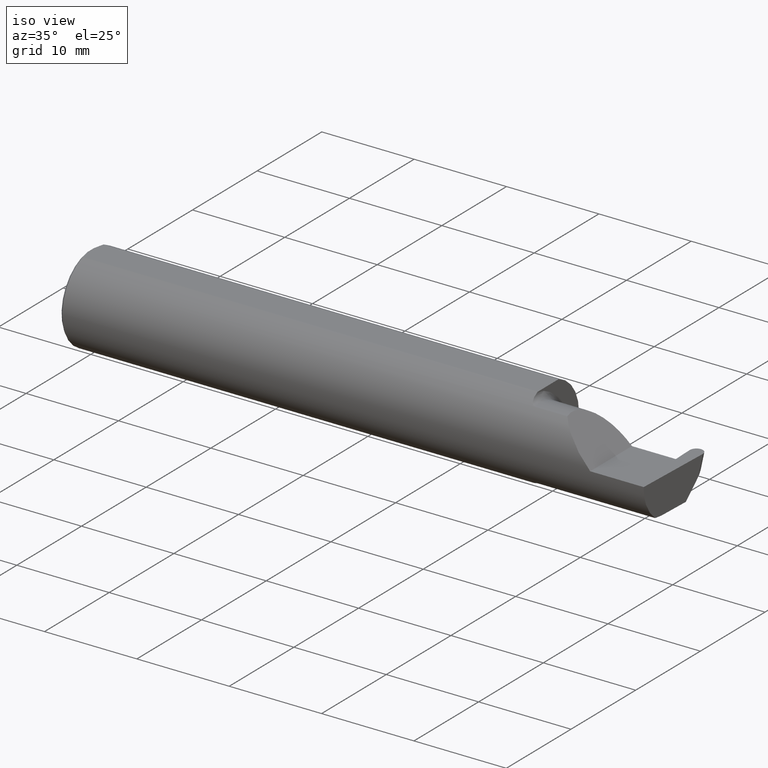
[diagram: clean part render]
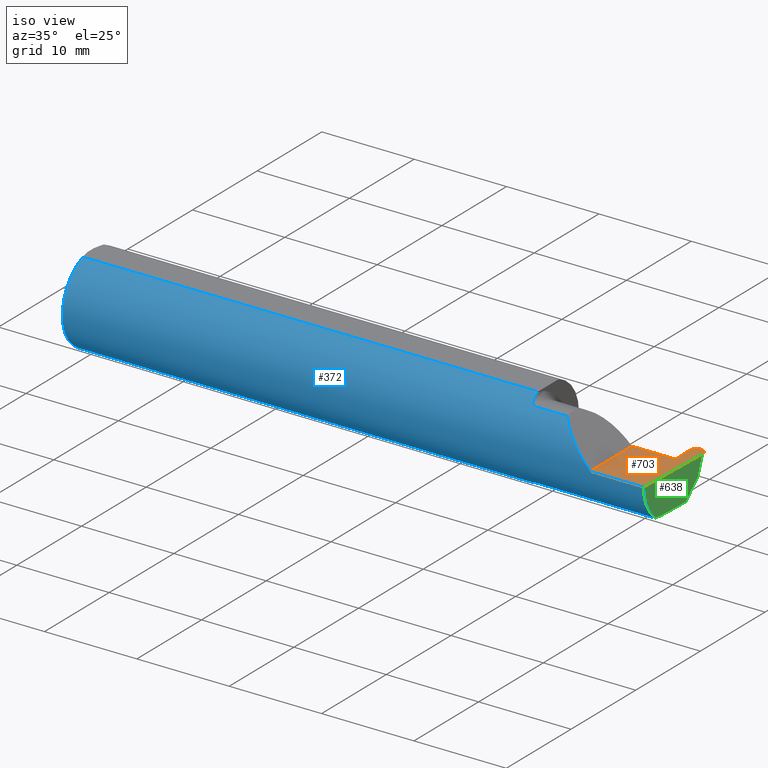
[diagram: same view with three faces highlighted in distinct colors, each labeled with its STEP entity id]
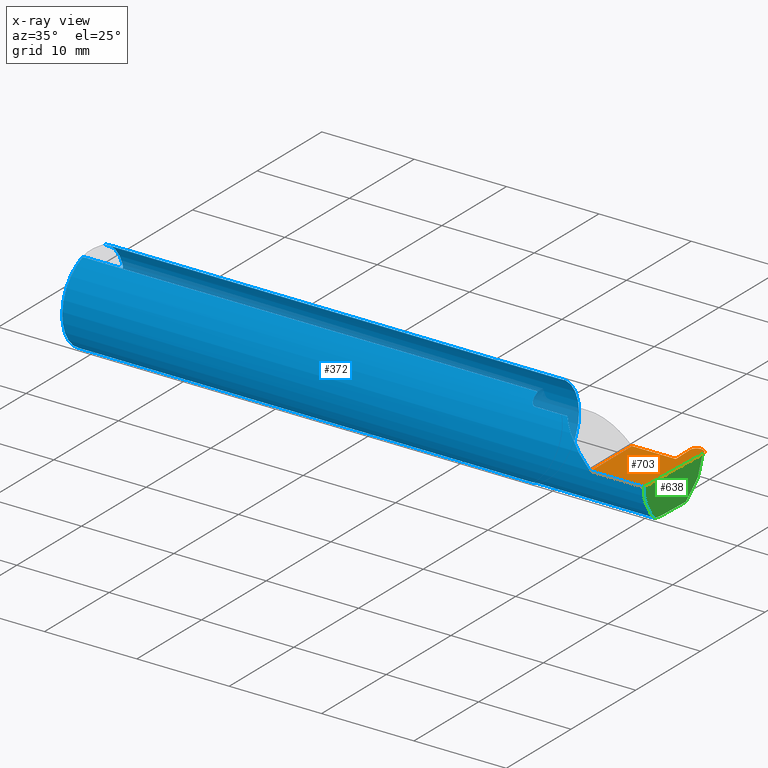
[diagram: x-ray of the same camera — body ghosted, the three highlighted faces saturated]
A machine part, iso view with three faces highlighted in distinct colors.
The next image is the same camera in x-ray (body ghosted, the three faces saturated) — at least one of them is partly hidden behind the body in this view.
Their STEP definitions:

[orange] entity #703 — the highlighted planar face has unit normal (-0, 0, -1).
#12 = CARTESIAN_POINT ( 'NONE',  ( 2.472196486352602030, 0.1846500000000000363, 0.000000000000000000 ) ) ;
#17 = ORIENTED_EDGE ( 'NONE', *, *, #543, .F. ) ;
#18 = EDGE_CURVE ( 'NONE', #534, #537, #34, .T. ) ;
#34 =( BOUNDED_CURVE ( )  B_SPLINE_CURVE ( 3, ( #498, #235, #672, #445 ),
 .UNSPECIFIED., .F., .T. ) 
 B_SPLINE_CURVE_WITH_KNOTS ( ( 4, 4 ),
 ( 6.199081184676152212, 7.797674339294876411 ),
 .UNSPECIFIED. ) 
 CURVE ( )  GEOMETRIC_REPRESENTATION_ITEM ( )  RATIONAL_B_SPLINE_CURVE ( ( 1.000000000000000000, 0.7981407609938082626, 0.7981407609938082626, 1.000000000000000000 ) ) 
 REPRESENTATION_ITEM ( '' )  );
#49 = DIRECTION ( 'NONE',  ( -0.000000000000000000, 1.000000000000000000, -0.000000000000000000 ) ) ;
#65 = CARTESIAN_POINT ( 'NONE',  ( 2.447024025498200750, 0.06664999999999991764, 0.000000000000000000 ) ) ;
#102 = ORIENTED_EDGE ( 'NONE', *, *, #236, .F. ) ;
#108 = DIRECTION ( 'NONE',  ( -1.000000000000000000, 0.000000000000000000, 1.224646799147353947E-16 ) ) ;
#117 = DIRECTION ( 'NONE',  ( -1.000000000000000000, -0.000000000000000000, -0.000000000000000000 ) ) ;
#119 = EDGE_CURVE ( 'NONE', #208, #598, #631, .T. ) ;
#123 = ORIENTED_EDGE ( 'NONE', *, *, #18, .T. ) ;
#125 = EDGE_CURVE ( 'NONE', #625, #201, #190, .T. ) ;
#144 = CARTESIAN_POINT ( 'NONE',  ( 2.499982912697886750, 0.1556210691174950700, 0.000000000000000000 ) ) ;
#153 = EDGE_LOOP ( 'NONE', ( #518, #123, #320, #370, #437, #102, #17, #666, #489 ) ) ;
#163 = CARTESIAN_POINT ( 'NONE',  ( 2.443960049305725857, 0.1543907983005533280, 0.000000000000000000 ) ) ;
#169 = CARTESIAN_POINT ( 'NONE',  ( 2.472196486352602030, 0.1846500000000000363, 0.000000000000000000 ) ) ;
#176 = DIRECTION ( 'NONE',  ( 1.000000000000000000, -0.000000000000000000, -0.000000000000000000 ) ) ;
#184 = CARTESIAN_POINT ( 'NONE',  ( 2.437903374698175529, 0.06664999999999991764, 0.000000000000000000 ) ) ;
#190 = LINE ( 'NONE', #144, #574 ) ;
#201 = VERTEX_POINT ( 'NONE', #585 ) ;
#207 = CARTESIAN_POINT ( 'NONE',  ( 2.443917087302114766, 0.1556210691174950977, 0.000000000000000000 ) ) ;
#208 = VERTEX_POINT ( 'NONE', #624 ) ;
#213 = DIRECTION ( 'NONE',  ( -1.224646799147353947E-16, 0.000000000000000000, -1.000000000000000000 ) ) ;
#221 = CARTESIAN_POINT ( 'NONE',  ( 2.499939950694276103, 0.1543907983005533280, 0.000000000000000000 ) ) ;
#224 = LINE ( 'NONE', #504, #659 ) ;
#231 = CARTESIAN_POINT ( 'NONE',  ( 2.447024025498200750, 0.06664999999999991764, 0.000000000000000000 ) ) ;
#235 = CARTESIAN_POINT ( 'NONE',  ( 2.454931386279057826, 0.1846500000000000918, 2.084523217784548210E-18 ) ) ;
#236 = EDGE_CURVE ( 'NONE', #529, #208, #459, .T. ) ;
#248 = CARTESIAN_POINT ( 'NONE',  ( 1.949999999999999956, 0.06665000000000001479, 6.735557395310446214E-17 ) ) ;
#286 = LINE ( 'NONE', #231, #695 ) ;
#312 = EDGE_CURVE ( 'NONE', #422, #537, #706, .T. ) ;
#320 = ORIENTED_EDGE ( 'NONE', *, *, #312, .F. ) ;
#328 = VECTOR ( 'NONE', #432, 39.37007874015748854 ) ;
#329 = CARTESIAN_POINT ( 'NONE',  ( 2.500000000000000000, -0.2500000000000000555, 0.000000000000000000 ) ) ;
#336 = CARTESIAN_POINT ( 'NONE',  ( 2.488968613720943246, 0.1846500000000000641, -2.084523217784549751E-18 ) ) ;
#344 = CARTESIAN_POINT ( 'NONE',  ( 2.471703513647399486, 0.1846500000000000363, 0.000000000000000000 ) ) ;
#364 = CARTESIAN_POINT ( 'NONE',  ( 2.499939950694276103, 0.1543907983005533280, 0.000000000000000000 ) ) ;
#370 = ORIENTED_EDGE ( 'NONE', *, *, #486, .F. ) ;
#390 = LINE ( 'NONE', #607, #482 ) ;
#413 = EDGE_CURVE ( 'NONE', #625, #506, #539, .T. ) ;
#422 = VERTEX_POINT ( 'NONE', #65 ) ;
#423 = EDGE_CURVE ( 'NONE', #534, #506, #224, .T. ) ;
#432 = DIRECTION ( 'NONE',  ( -0.03489949670249503644, 0.9993908270190959842, -0.000000000000000000 ) ) ;
#437 = ORIENTED_EDGE ( 'NONE', *, *, #119, .F. ) ;
#445 = CARTESIAN_POINT ( 'NONE',  ( 2.443960049305725857, 0.1543907983005533280, 0.000000000000000000 ) ) ;
#459 = LINE ( 'NONE', #686, #503 ) ;
#473 = PLANE ( 'NONE',  #555 ) ;
#482 = VECTOR ( 'NONE', #117, 39.37007874015748143 ) ;
#486 = EDGE_CURVE ( 'NONE', #598, #422, #286, .T. ) ;
#489 = ORIENTED_EDGE ( 'NONE', *, *, #413, .T. ) ;
#498 = CARTESIAN_POINT ( 'NONE',  ( 2.471703513647399486, 0.1846500000000000363, 0.000000000000000000 ) ) ;
#503 = VECTOR ( 'NONE', #49, 39.37007874015748143 ) ;
#504 = CARTESIAN_POINT ( 'NONE',  ( -0.001039370078740541395, 0.1846500000000000363, 0.000000000000000000 ) ) ;
#506 = VERTEX_POINT ( 'NONE', #12 ) ;
#518 = ORIENTED_EDGE ( 'NONE', *, *, #423, .F. ) ;
#529 = VERTEX_POINT ( 'NONE', #661 ) ;
#534 = VERTEX_POINT ( 'NONE', #344 ) ;
#537 = VERTEX_POINT ( 'NONE', #163 ) ;
#539 =( BOUNDED_CURVE ( )  B_SPLINE_CURVE ( 3, ( #221, #561, #336, #169 ),
 .UNSPECIFIED., .F., .T. ) 
 B_SPLINE_CURVE_WITH_KNOTS ( ( 4, 4 ),
 ( 1.627103621474501827, 3.225696776093226248 ),
 .UNSPECIFIED. ) 
 CURVE ( )  GEOMETRIC_REPRESENTATION_ITEM ( )  RATIONAL_B_SPLINE_CURVE ( ( 1.000000000000000000, 0.7981407609938081515, 0.7981407609938081515, 1.000000000000000000 ) ) 
 REPRESENTATION_ITEM ( '' )  );
#543 = EDGE_CURVE ( 'NONE', #201, #529, #390, .T. ) ;
#555 = AXIS2_PLACEMENT_3D ( 'NONE', #329, #213, #108 ) ;
#561 = CARTESIAN_POINT ( 'NONE',  ( 2.500555318597047716, 0.1720126294265148514, -3.503485321703165850E-18 ) ) ;
#572 = DIRECTION ( 'NONE',  ( -0.03489949670249509889, -0.9993908270190959842, 0.000000000000000000 ) ) ;
#574 = VECTOR ( 'NONE', #572, 39.37007874015748854 ) ;
#585 = CARTESIAN_POINT ( 'NONE',  ( 2.488006099050898090, -0.1873499999999999888, 0.000000000000000000 ) ) ;
#590 = VECTOR ( 'NONE', #636, 39.37007874015748143 ) ;
#598 = VERTEX_POINT ( 'NONE', #184 ) ;
#607 = CARTESIAN_POINT ( 'NONE',  ( 3.749399456654646757E-32, -0.1873499999999999610, 3.061616997868383634E-16 ) ) ;
#624 = CARTESIAN_POINT ( 'NONE',  ( 2.260000000000000231, 0.06665000000000001479, 6.735557395310446214E-17 ) ) ;
#625 = VERTEX_POINT ( 'NONE', #364 ) ;
#631 = LINE ( 'NONE', #248, #590 ) ;
#636 = DIRECTION ( 'NONE',  ( 1.000000000000000000, 3.456985211662611914E-17, 0.000000000000000000 ) ) ;
#654 = FACE_OUTER_BOUND ( 'NONE', #153, .T. ) ;
#659 = VECTOR ( 'NONE', #674, 39.37007874015748143 ) ;
#661 = CARTESIAN_POINT ( 'NONE',  ( 2.260000000000000231, -0.1873499999999999888, 2.939152317953647352E-17 ) ) ;
#666 = ORIENTED_EDGE ( 'NONE', *, *, #125, .F. ) ;
#672 = CARTESIAN_POINT ( 'NONE',  ( 2.443344681402952911, 0.1720126294265148792, 3.503485321703165080E-18 ) ) ;
#674 = DIRECTION ( 'NONE',  ( 1.000000000000000000, -0.000000000000000000, -0.000000000000000000 ) ) ;
#686 = CARTESIAN_POINT ( 'NONE',  ( 2.260000000000000231, -0.2500000000000000555, 2.939152317953647352E-17 ) ) ;
#695 = VECTOR ( 'NONE', #176, 39.37007874015748143 ) ;
#703 = ADVANCED_FACE ( 'NONE', ( #654 ), #473, .F. ) ;
#706 = LINE ( 'NONE', #207, #328 ) ;

[blue] entity #372 — the highlighted cylindrical surface (partial cylindrical patch) has radius 4.7587 mm, axis along (-1, -0, -0).
#4 = CARTESIAN_POINT ( 'NONE',  ( 0.009999999999999346217, 0.000000000000000000, -0.1873499999999999888 ) ) ;
#5 = CARTESIAN_POINT ( 'NONE',  ( 0.000000000000000000, 0.000000000000000000, 0.000000000000000000 ) ) ;
#27 = CARTESIAN_POINT ( 'NONE',  ( 1.949999999999999956, -0.06851976604679065053, -0.1743704796142198643 ) ) ;
#30 = CARTESIAN_POINT ( 'NONE',  ( 1.951829077486400221, -0.08839624499054647699, 0.1652742498708037466 ) ) ;
#31 = CARTESIAN_POINT ( 'NONE',  ( 2.202189699843948301, -0.1873500000000000443, 0.05781030015605120170 ) ) ;
#35 = CARTESIAN_POINT ( 'NONE',  ( 1.965004157323697598, -0.1137044537483316436, 0.1489098419202428414 ) ) ;
#38 = DIRECTION ( 'NONE',  ( 1.000000000000000000, 3.456985211662611914E-17, 0.000000000000000000 ) ) ;
#39 = CARTESIAN_POINT ( 'NONE',  ( 2.113883229301068312, -0.1172600179964003175, 0.1461167706989304760 ) ) ;
#44 = ORIENTED_EDGE ( 'NONE', *, *, #583, .F. ) ;
#51 = DIRECTION ( 'NONE',  ( 0.000000000000000000, 0.000000000000000000, -1.000000000000000000 ) ) ;
#52 = LINE ( 'NONE', #478, #658 ) ;
#59 = CARTESIAN_POINT ( 'NONE',  ( 1.974999999999999867, -0.1172600179964006784, 0.1461167706989303650 ) ) ;
#69 = ORIENTED_EDGE ( 'NONE', *, *, #342, .F. ) ;
#70 = EDGE_CURVE ( 'NONE', #476, #110, #95, .T. ) ;
#72 = ORIENTED_EDGE ( 'NONE', *, *, #694, .T. ) ;
#81 = CARTESIAN_POINT ( 'NONE',  ( 1.972161949849307927, -0.1172600179964061184, 0.1461167706989260073 ) ) ;
#85 = VECTOR ( 'NONE', #417, 39.37007874015748143 ) ;
#90 = CARTESIAN_POINT ( 'NONE',  ( 2.486959146249366537, -0.1623470442677541203, -0.1099340280425339100 ) ) ;
#95 = CIRCLE ( 'NONE', #182, 0.1873499999999999888 ) ;
#100 = EDGE_LOOP ( 'NONE', ( #69, #637, #186, #212, #272, #44, #629, #582, #72, #378, #411, #191, #586 ) ) ;
#104 = DIRECTION ( 'NONE',  ( 1.000000000000000000, 0.000000000000000000, 0.000000000000000000 ) ) ;
#110 = VERTEX_POINT ( 'NONE', #395 ) ;
#116 = EDGE_CURVE ( 'NONE', #529, #164, #634, .T. ) ;
#117 = DIRECTION ( 'NONE',  ( -1.000000000000000000, -0.000000000000000000, -0.000000000000000000 ) ) ;
#134 = CARTESIAN_POINT ( 'NONE',  ( 1.950358271039143165, -0.07873626113568077400, -0.1700887912276895508 ) ) ;
#143 = CARTESIAN_POINT ( 'NONE',  ( 1.956304331342286762, -0.1022198306720689676, -0.1570962426853819427 ) ) ;
#150 = CARTESIAN_POINT ( 'NONE',  ( 0.009999999999999346217, 0.000000000000000000, 0.000000000000000000 ) ) ;
#151 = AXIS2_PLACEMENT_3D ( 'NONE', #379, #599, #588 ) ;
#154 = DIRECTION ( 'NONE',  ( -1.000000000000000000, -0.000000000000000000, -0.000000000000000000 ) ) ;
#164 = VERTEX_POINT ( 'NONE', #696 ) ;
#165 = EDGE_CURVE ( 'NONE', #430, #457, #352, .T. ) ;
#182 = AXIS2_PLACEMENT_3D ( 'NONE', #668, #563, #290 ) ;
#186 = ORIENTED_EDGE ( 'NONE', *, *, #543, .T. ) ;
#191 = ORIENTED_EDGE ( 'NONE', *, *, #568, .F. ) ;
#192 = CARTESIAN_POINT ( 'NONE',  ( 1.956287624083520305, -0.1021858045380145824, 0.1571187174372875861 ) ) ;
#195 = LINE ( 'NONE', #408, #439 ) ;
#201 = VERTEX_POINT ( 'NONE', #585 ) ;
#205 = VERTEX_POINT ( 'NONE', #528 ) ;
#212 = ORIENTED_EDGE ( 'NONE', *, *, #116, .T. ) ;
#237 = CARTESIAN_POINT ( 'NONE',  ( 1.958475602106621860, -0.1064978748893406074, 0.1542035505680383611 ) ) ;
#242 = AXIS2_PLACEMENT_3D ( 'NONE', #627, #38, #298 ) ;
#247 = CARTESIAN_POINT ( 'NONE',  ( 1.949999999999999956, -0.06851976604679065053, 0.1743704796142198643 ) ) ;
#249 = VERTEX_POINT ( 'NONE', #377 ) ;
#250 = CARTESIAN_POINT ( 'NONE',  ( 1.950353553376444671, -0.07868116735658675642, 0.1701139256562800295 ) ) ;
#272 = ORIENTED_EDGE ( 'NONE', *, *, #594, .F. ) ;
#288 = EDGE_CURVE ( 'NONE', #205, #476, #52, .T. ) ;
#290 = DIRECTION ( 'NONE',  ( 0.000000000000000000, 1.000000000000000000, 0.000000000000000000 ) ) ;
#298 = DIRECTION ( 'NONE',  ( 0.000000000000000000, 1.000000000000000000, 0.000000000000000000 ) ) ;
#302 = CARTESIAN_POINT ( 'NONE',  ( 1.974999999999999867, -0.1172600179964006784, 0.1461167706989303650 ) ) ;
#306 = CARTESIAN_POINT ( 'NONE',  ( 0.000000000000000000, 0.06325108694718235836, 0.1763499999999999235 ) ) ;
#309 = CARTESIAN_POINT ( 'NONE',  ( 2.486996401427643555, -0.1873500000000000443, -0.05781030015605125721 ) ) ;
#324 = CARTESIAN_POINT ( 'NONE',  ( 1.949999999999999956, -0.06851976604679065053, -0.1743704796142198643 ) ) ;
#342 = EDGE_CURVE ( 'NONE', #346, #249, #533, .T. ) ;
#345 = AXIS2_PLACEMENT_3D ( 'NONE', #5, #154, #373 ) ;
#346 = VERTEX_POINT ( 'NONE', #435 ) ;
#351 = CARTESIAN_POINT ( 'NONE',  ( 1.969511795768554396, -0.1163687266324233555, -0.1468371510166789906 ) ) ;
#352 = LINE ( 'NONE', #306, #85 ) ;
#353 = VERTEX_POINT ( 'NONE', #59 ) ;
#372 = ADVANCED_FACE ( 'NONE', ( #549 ), #487, .T. ) ;
#373 = DIRECTION ( 'NONE',  ( 0.000000000000000000, 0.000000000000000000, 1.000000000000000000 ) ) ;
#377 = CARTESIAN_POINT ( 'NONE',  ( 1.974999999999999867, -0.1172600179964005396, -0.1461167706989303927 ) ) ;
#378 = ORIENTED_EDGE ( 'NONE', *, *, #642, .T. ) ;
#379 = CARTESIAN_POINT ( 'NONE',  ( 0.009999999999999346217, 0.000000000000000000, 0.000000000000000000 ) ) ;
#390 = LINE ( 'NONE', #607, #482 ) ;
#394 = CARTESIAN_POINT ( 'NONE',  ( 1.949999999999999956, 0.06325108694718235836, 0.1763499999999999235 ) ) ;
#395 = CARTESIAN_POINT ( 'NONE',  ( 1.949999999999999956, -0.06851976604679065053, 0.1743704796142198643 ) ) ;
#404 = CARTESIAN_POINT ( 'NONE',  ( 1.974999999999999867, -0.1172600179964005396, -0.1461167706989303927 ) ) ;
#407 = B_SPLINE_CURVE_WITH_KNOTS ( 'NONE', 3,
 ( #404, #523, #351, #466, #416, #635, #143, #623, #584, #134, #508, #27 ),
 .UNSPECIFIED., .F., .F.,
 ( 4, 2, 2, 2, 2, 4 ),
 ( 1.967976973726874814E-07, 0.0002120314145722347263, 0.0004238660314470967276, 0.0008475352651968083703, 0.001271204498946519905, 0.001694873732696231547 ),
 .UNSPECIFIED. ) ;
#408 = CARTESIAN_POINT ( 'NONE',  ( 2.209449999999999914, -0.1172600179964006090, 0.1461167706989303927 ) ) ;
#411 = ORIENTED_EDGE ( 'NONE', *, *, #165, .F. ) ;
#412 = DIRECTION ( 'NONE',  ( 1.000000000000000000, 3.456985211662611914E-17, 0.000000000000000000 ) ) ;
#414 = VECTOR ( 'NONE', #652, 39.37007874015748143 ) ;
#416 = CARTESIAN_POINT ( 'NONE',  ( 1.963203859946833330, -0.1120371980050637317, -0.1501764597936559864 ) ) ;
#417 = DIRECTION ( 'NONE',  ( -1.000000000000000000, -0.000000000000000000, -0.000000000000000000 ) ) ;
#430 = VERTEX_POINT ( 'NONE', #394 ) ;
#435 = CARTESIAN_POINT ( 'NONE',  ( 2.487901662807321390, -0.1172600179964006090, -0.1461167706989303927 ) ) ;
#439 = VECTOR ( 'NONE', #412, 39.37007874015748143 ) ;
#453 = CARTESIAN_POINT ( 'NONE',  ( 2.488006099050898090, -0.1873499999999999888, 0.000000000000000000 ) ) ;
#457 = VERTEX_POINT ( 'NONE', #564 ) ;
#458 = CARTESIAN_POINT ( 'NONE',  ( 1.952945243422982591, -0.09312071749437422774, 0.1626553472577906834 ) ) ;
#463 = CARTESIAN_POINT ( 'NONE',  ( 1.949999999999999956, -0.07367581953296703512, 0.1723443821957854338 ) ) ;
#464 = CARTESIAN_POINT ( 'NONE',  ( 2.150065971957464850, -0.1623470442677540371, 0.1099340280425340488 ) ) ;
#466 = CARTESIAN_POINT ( 'NONE',  ( 1.965028532764137914, -0.1137241120808234196, -0.1488947809299404346 ) ) ;
#476 = VERTEX_POINT ( 'NONE', #667 ) ;
#478 = CARTESIAN_POINT ( 'NONE',  ( 0.000000000000000000, -0.06325108694718235836, 0.1763499999999999235 ) ) ;
#482 = VECTOR ( 'NONE', #117, 39.37007874015748143 ) ;
#487 = CYLINDRICAL_SURFACE ( 'NONE', #345, 0.1873499999999999888 ) ;
#494 = AXIS2_PLACEMENT_3D ( 'NONE', #150, #104, #51 ) ;
#508 = CARTESIAN_POINT ( 'NONE',  ( 1.949999999999999067, -0.07368234487347190276, -0.1723418180300748115 ) ) ;
#511 = CARTESIAN_POINT ( 'NONE',  ( 1.963163223656403389, -0.1119926267047277602, 0.1502091925606062750 ) ) ;
#523 = CARTESIAN_POINT ( 'NONE',  ( 1.972174967710398796, -0.1172600179964006228, -0.1461167706989304205 ) ) ;
#528 = CARTESIAN_POINT ( 'NONE',  ( 0.009999999999999346217, -0.06325108694718235836, 0.1763499999999999235 ) ) ;
#529 = VERTEX_POINT ( 'NONE', #661 ) ;
#533 = LINE ( 'NONE', #545, #414 ) ;
#540 = DIRECTION ( 'NONE',  ( 1.000000000000000000, 0.000000000000000000, 0.000000000000000000 ) ) ;
#543 = EDGE_CURVE ( 'NONE', #201, #529, #390, .T. ) ;
#545 = CARTESIAN_POINT ( 'NONE',  ( 2.209449999999999914, -0.1172600179964006090, -0.1461167706989303927 ) ) ;
#549 = FACE_OUTER_BOUND ( 'NONE', #100, .T. ) ;
#563 = DIRECTION ( 'NONE',  ( 1.000000000000000000, 3.456985211662611914E-17, 0.000000000000000000 ) ) ;
#564 = CARTESIAN_POINT ( 'NONE',  ( 0.009999999999999346217, 0.06325108694718235836, 0.1763499999999999235 ) ) ;
#568 = EDGE_CURVE ( 'NONE', #645, #430, #646, .T. ) ;
#580 = CARTESIAN_POINT ( 'NONE',  ( 2.487901662807321390, -0.1172600179964006090, -0.1461167706989303927 ) ) ;
#582 = ORIENTED_EDGE ( 'NONE', *, *, #288, .F. ) ;
#583 = EDGE_CURVE ( 'NONE', #110, #353, #602, .T. ) ;
#584 = CARTESIAN_POINT ( 'NONE',  ( 1.951843912362378308, -0.08846956905169088559, -0.1652353808078972919 ) ) ;
#585 = CARTESIAN_POINT ( 'NONE',  ( 2.488006099050898090, -0.1873499999999999888, 0.000000000000000000 ) ) ;
#586 = ORIENTED_EDGE ( 'NONE', *, *, #632, .F. ) ;
#588 = DIRECTION ( 'NONE',  ( 0.000000000000000000, 0.000000000000000000, -1.000000000000000000 ) ) ;
#594 = EDGE_CURVE ( 'NONE', #353, #164, #195, .T. ) ;
#599 = DIRECTION ( 'NONE',  ( 1.000000000000000000, 0.000000000000000000, 0.000000000000000000 ) ) ;
#602 = B_SPLINE_CURVE_WITH_KNOTS ( 'NONE', 3,
 ( #247, #463, #250, #30, #458, #192, #237, #511, #35, #685, #81, #302 ),
 .UNSPECIFIED., .F., .F.,
 ( 4, 2, 2, 2, 2, 4 ),
 ( 4.423516731080767705E-05, 0.0004615475116586702166, 0.0008788598560065327562, 0.001296172200354395350, 0.001504828372528326267, 0.001713484544702257402 ),
 .UNSPECIFIED. ) ;
#607 = CARTESIAN_POINT ( 'NONE',  ( 3.749399456654646757E-32, -0.1873499999999999610, 3.061616997868383634E-16 ) ) ;
#622 = EDGE_CURVE ( 'NONE', #346, #201, #626, .T. ) ;
#623 = CARTESIAN_POINT ( 'NONE',  ( 1.952960551809340917, -0.09317341542745738447, -0.1626248379125197208 ) ) ;
#626 =( BOUNDED_CURVE ( )  B_SPLINE_CURVE ( 3, ( #580, #90, #309, #453 ),
 .UNSPECIFIED., .F., .F. ) 
 B_SPLINE_CURVE_WITH_KNOTS ( ( 4, 4 ),
 ( 5.852427379562164411, 6.746954780470612256 ),
 .UNSPECIFIED. ) 
 CURVE ( )  GEOMETRIC_REPRESENTATION_ITEM ( )  RATIONAL_B_SPLINE_CURVE ( ( 1.000000000000000000, 0.9344226172588802060, 0.9344226172588802060, 1.000000000000000000 ) ) 
 REPRESENTATION_ITEM ( '' )  );
#627 = CARTESIAN_POINT ( 'NONE',  ( 1.949999999999999956, 0.000000000000000000, 0.000000000000000000 ) ) ;
#629 = ORIENTED_EDGE ( 'NONE', *, *, #70, .F. ) ;
#632 = EDGE_CURVE ( 'NONE', #249, #645, #407, .T. ) ;
#634 =( BOUNDED_CURVE ( )  B_SPLINE_CURVE ( 3, ( #681, #31, #464, #39 ),
 .UNSPECIFIED., .F., .F. ) 
 B_SPLINE_CURVE_WITH_KNOTS ( ( 4, 4 ),
 ( 4.712388980384688786, 5.606916381293139295 ),
 .UNSPECIFIED. ) 
 CURVE ( )  GEOMETRIC_REPRESENTATION_ITEM ( )  RATIONAL_B_SPLINE_CURVE ( ( 1.000000000000000000, 0.9344226172588797619, 0.9344226172588797619, 1.000000000000000000 ) ) 
 REPRESENTATION_ITEM ( '' )  );
#635 = CARTESIAN_POINT ( 'NONE',  ( 1.958439486659306894, -0.1064616213911157294, -0.1542305641651501580 ) ) ;
#637 = ORIENTED_EDGE ( 'NONE', *, *, #622, .T. ) ;
#642 = EDGE_CURVE ( 'NONE', #702, #457, #669, .T. ) ;
#645 = VERTEX_POINT ( 'NONE', #324 ) ;
#646 = CIRCLE ( 'NONE', #242, 0.1873499999999999888 ) ;
#652 = DIRECTION ( 'NONE',  ( -1.000000000000000000, -3.456985211662611914E-17, -0.000000000000000000 ) ) ;
#658 = VECTOR ( 'NONE', #540, 39.37007874015748143 ) ;
#661 = CARTESIAN_POINT ( 'NONE',  ( 2.260000000000000231, -0.1873499999999999888, 2.939152317953647352E-17 ) ) ;
#667 = CARTESIAN_POINT ( 'NONE',  ( 1.949999999999999956, -0.06325108694718283020, 0.1763499999999999235 ) ) ;
#668 = CARTESIAN_POINT ( 'NONE',  ( 1.949999999999999956, 0.000000000000000000, 0.000000000000000000 ) ) ;
#669 = CIRCLE ( 'NONE', #494, 0.1873499999999999888 ) ;
#680 = CIRCLE ( 'NONE', #151, 0.1873499999999999888 ) ;
#681 = CARTESIAN_POINT ( 'NONE',  ( 2.260000000000000231, -0.1873499999999999888, 2.939152317953647352E-17 ) ) ;
#685 = CARTESIAN_POINT ( 'NONE',  ( 1.969481469043492305, -0.1163560528186166343, 0.1468472430636323378 ) ) ;
#694 = EDGE_CURVE ( 'NONE', #205, #702, #680, .T. ) ;
#696 = CARTESIAN_POINT ( 'NONE',  ( 2.113883229301068312, -0.1172600179964003175, 0.1461167706989304760 ) ) ;
#702 = VERTEX_POINT ( 'NONE', #4 ) ;

[green] entity #638 — the highlighted planar face has unit normal (-0.9992, 0.0349, 0.0175).
#2 = CARTESIAN_POINT ( 'NONE',  ( 2.499950392650356346, 0.1545085540790380740, 0.0003624150208497695482 ) ) ;
#7 =( BOUNDED_CURVE ( )  B_SPLINE_CURVE ( 3, ( #456, #91, #196, #365 ),
 .UNSPECIFIED., .F., .F. ) 
 B_SPLINE_CURVE_WITH_KNOTS ( ( 4, 4 ),
 ( 0.8789888184544277783, 1.107026853503870978 ),
 .UNSPECIFIED. ) 
 CURVE ( )  GEOMETRIC_REPRESENTATION_ITEM ( )  RATIONAL_B_SPLINE_CURVE ( ( 1.000000000000000000, 0.9956712472009929815, 0.9956712472009929815, 1.000000000000000000 ) ) 
 REPRESENTATION_ITEM ( '' )  );
#19 = CARTESIAN_POINT ( 'NONE',  ( 2.496474746315712423, 0.1068850723125631674, -0.1034179792305871259 ) ) ;
#50 = ORIENTED_EDGE ( 'NONE', *, *, #257, .T. ) ;
#90 = CARTESIAN_POINT ( 'NONE',  ( 2.486959146249366537, -0.1623470442677541203, -0.1099340280425339100 ) ) ;
#91 = CARTESIAN_POINT ( 'NONE',  ( 2.488245243745037527, -0.1061291577212408743, -0.1486999626928446339 ) ) ;
#125 = EDGE_CURVE ( 'NONE', #625, #201, #190, .T. ) ;
#144 = CARTESIAN_POINT ( 'NONE',  ( 2.499982912697886750, 0.1556210691174950700, 0.000000000000000000 ) ) ;
#147 = CARTESIAN_POINT ( 'NONE',  ( 2.489315391880043915, -0.07483390797619576817, -0.1500000000000000500 ) ) ;
#148 = ORIENTED_EDGE ( 'NONE', *, *, #197, .T. ) ;
#172 = VECTOR ( 'NONE', #261, 39.37007874015748143 ) ;
#180 = PLANE ( 'NONE',  #269 ) ;
#190 = LINE ( 'NONE', #144, #574 ) ;
#196 = CARTESIAN_POINT ( 'NONE',  ( 2.488618975064261996, -0.09477667630339420279, -0.1500000000000000500 ) ) ;
#197 = EDGE_CURVE ( 'NONE', #346, #331, #7, .T. ) ;
#201 = VERTEX_POINT ( 'NONE', #585 ) ;
#240 = ORIENTED_EDGE ( 'NONE', *, *, #622, .F. ) ;
#241 = EDGE_CURVE ( 'NONE', #501, #331, #265, .T. ) ;
#256 = CARTESIAN_POINT ( 'NONE',  ( 2.497553638666705655, 0.1274799371216592259, -0.08282311442149083158 ) ) ;
#257 = EDGE_CURVE ( 'NONE', #641, #625, #596, .T. ) ;
#261 = DIRECTION ( 'NONE',  ( -0.03489949670249509889, -0.9993908270190959842, 0.000000000000000000 ) ) ;
#265 = LINE ( 'NONE', #147, #172 ) ;
#269 = AXIS2_PLACEMENT_3D ( 'NONE', #620, #348, #567 ) ;
#285 = ORIENTED_EDGE ( 'NONE', *, *, #241, .F. ) ;
#309 = CARTESIAN_POINT ( 'NONE',  ( 2.486996401427643555, -0.1873500000000000443, -0.05781030015605125721 ) ) ;
#331 = VERTEX_POINT ( 'NONE', #640 ) ;
#346 = VERTEX_POINT ( 'NONE', #435 ) ;
#348 = DIRECTION ( 'NONE',  ( -0.9992386149554828290, 0.03489418134010779937, 0.01745240643728358798 ) ) ;
#364 = CARTESIAN_POINT ( 'NONE',  ( 2.499939950694276103, 0.1543907983005533280, 0.000000000000000000 ) ) ;
#365 = CARTESIAN_POINT ( 'NONE',  ( 2.489018003393509648, -0.08335000000000006293, -0.1500000000000000500 ) ) ;
#380 = DIRECTION ( 'NONE',  ( 0.02739170151060046562, 0.3089010440752013031, 0.9506996579664918068 ) ) ;
#384 = VECTOR ( 'NONE', #616, 39.37007874015748143 ) ;
#387 = EDGE_LOOP ( 'NONE', ( #460, #50, #441, #240, #148, #285 ) ) ;
#398 = LINE ( 'NONE', #19, #384 ) ;
#435 = CARTESIAN_POINT ( 'NONE',  ( 2.487901662807321390, -0.1172600179964006090, -0.1461167706989303927 ) ) ;
#441 = ORIENTED_EDGE ( 'NONE', *, *, #125, .T. ) ;
#453 = CARTESIAN_POINT ( 'NONE',  ( 2.488006099050898090, -0.1873499999999999888, 0.000000000000000000 ) ) ;
#456 = CARTESIAN_POINT ( 'NONE',  ( 2.487901662807321390, -0.1172600179964006090, -0.1461167706989303927 ) ) ;
#460 = ORIENTED_EDGE ( 'NONE', *, *, #502, .F. ) ;
#495 = CARTESIAN_POINT ( 'NONE',  ( 2.494034478493233120, 0.06030305154315079852, -0.1500000000000000500 ) ) ;
#501 = VERTEX_POINT ( 'NONE', #495 ) ;
#502 = EDGE_CURVE ( 'NONE', #641, #501, #398, .T. ) ;
#567 = DIRECTION ( 'NONE',  ( -0.03489949670249509889, -0.9993908270190959842, 0.000000000000000000 ) ) ;
#572 = DIRECTION ( 'NONE',  ( -0.03489949670249509889, -0.9993908270190959842, 0.000000000000000000 ) ) ;
#574 = VECTOR ( 'NONE', #572, 39.37007874015748854 ) ;
#577 = VECTOR ( 'NONE', #380, 39.37007874015748854 ) ;
#580 = CARTESIAN_POINT ( 'NONE',  ( 2.487901662807321390, -0.1172600179964006090, -0.1461167706989303927 ) ) ;
#585 = CARTESIAN_POINT ( 'NONE',  ( 2.488006099050898090, -0.1873499999999999888, 0.000000000000000000 ) ) ;
#596 = LINE ( 'NONE', #2, #577 ) ;
#616 = DIRECTION ( 'NONE',  ( -0.03701744261649878714, -0.7066221440565398915, -0.7066221440565479961 ) ) ;
#620 = CARTESIAN_POINT ( 'NONE',  ( 2.499982912697886750, 0.1556210691174950700, 0.000000000000000000 ) ) ;
#622 = EDGE_CURVE ( 'NONE', #346, #201, #626, .T. ) ;
#625 = VERTEX_POINT ( 'NONE', #364 ) ;
#626 =( BOUNDED_CURVE ( )  B_SPLINE_CURVE ( 3, ( #580, #90, #309, #453 ),
 .UNSPECIFIED., .F., .F. ) 
 B_SPLINE_CURVE_WITH_KNOTS ( ( 4, 4 ),
 ( 5.852427379562164411, 6.746954780470612256 ),
 .UNSPECIFIED. ) 
 CURVE ( )  GEOMETRIC_REPRESENTATION_ITEM ( )  RATIONAL_B_SPLINE_CURVE ( ( 1.000000000000000000, 0.9344226172588802060, 0.9344226172588802060, 1.000000000000000000 ) ) 
 REPRESENTATION_ITEM ( '' )  );
#638 = ADVANCED_FACE ( 'NONE', ( #677 ), #180, .F. ) ;
#640 = CARTESIAN_POINT ( 'NONE',  ( 2.489018003393509648, -0.08335000000000006293, -0.1500000000000000500 ) ) ;
#641 = VERTEX_POINT ( 'NONE', #256 ) ;
#677 = FACE_OUTER_BOUND ( 'NONE', #387, .T. ) ;